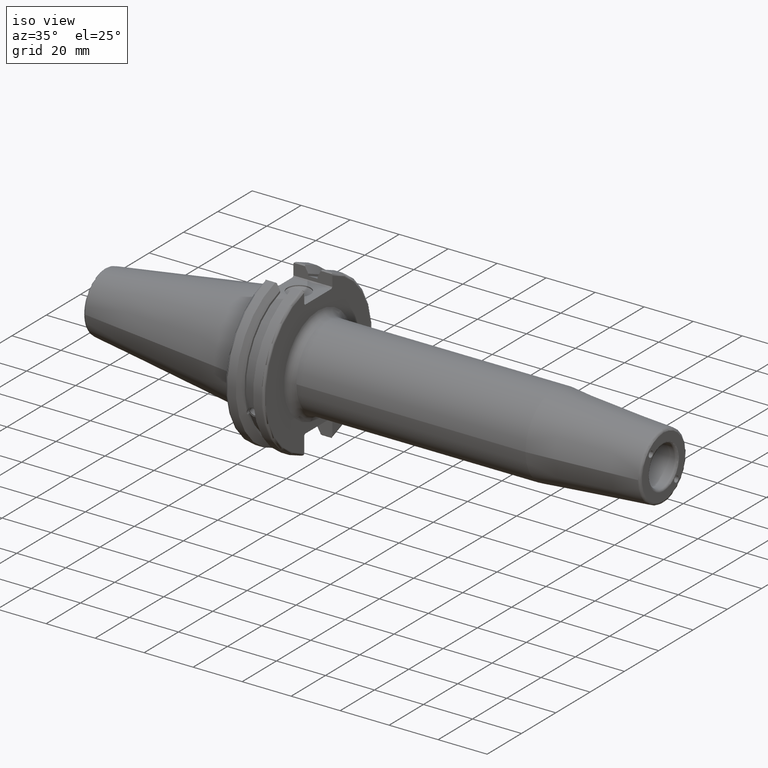
[diagram: clean part render]
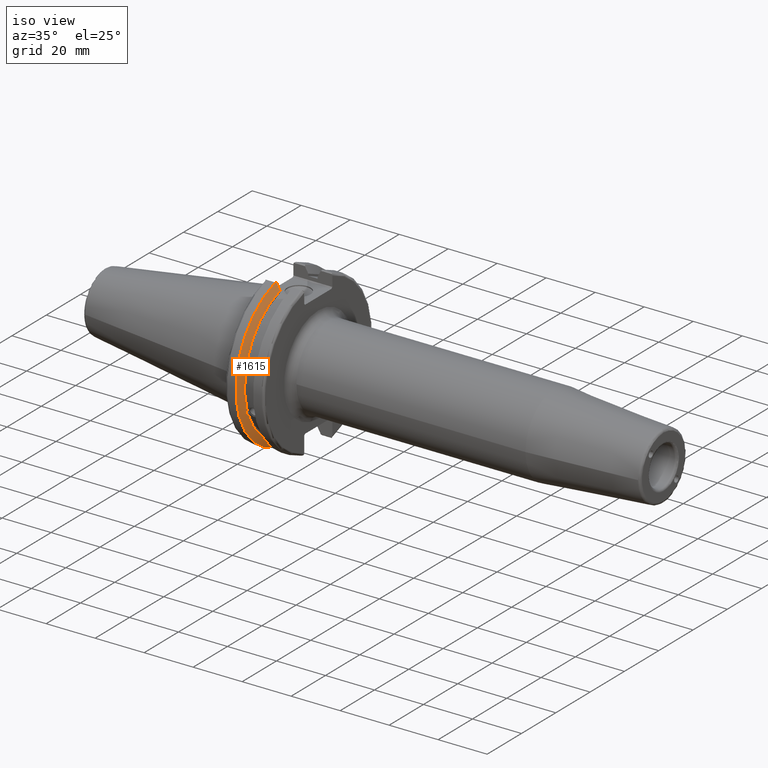
[diagram: same view with one face highlighted and labeled with its STEP entity id]
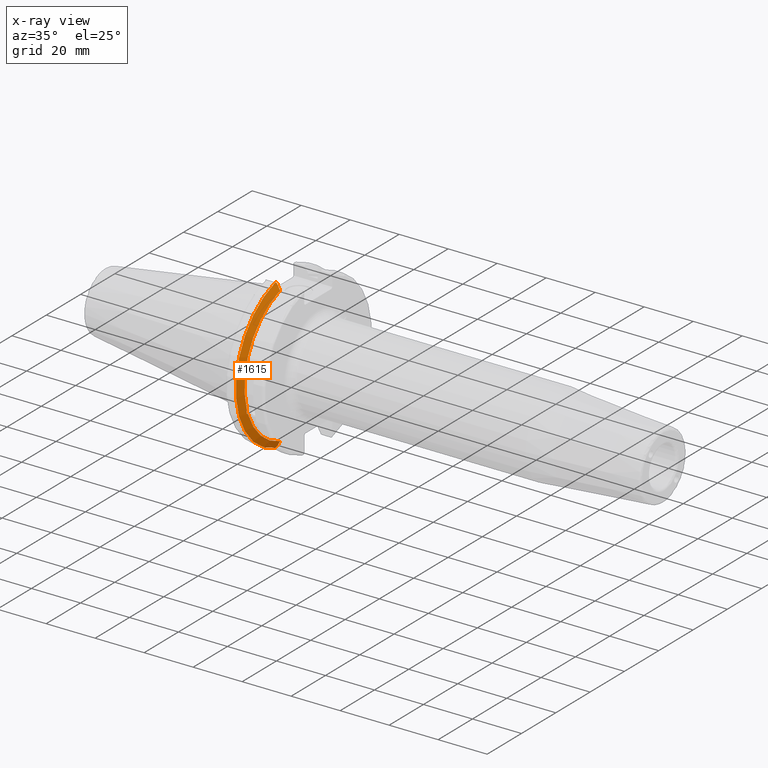
[diagram: x-ray of the same camera — body ghosted, the highlighted face saturated]
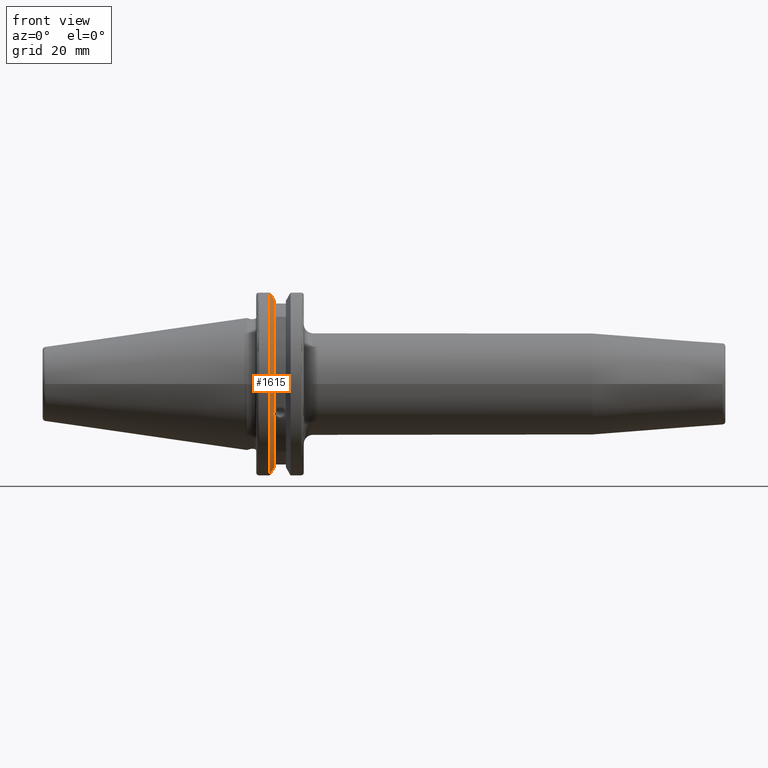
[diagram: same view with one face highlighted and labeled with its STEP entity id]
A machine part, iso view. The second image highlights one B-rep face of the part: STEP entity #1615.
The next image is the same camera in x-ray: the body ghosted, the highlighted face saturated — about 0% of this face is hidden behind the body in this view.
A second angle (front view) of the same face is appended — the face is thin or edge-on in the first view.
In plain terms, the highlighted conical surface has half-angle 60 deg.
Its self-contained STEP definition (entity closure, byte-faithful):
#25=(
BOUNDED_CURVE()
B_SPLINE_CURVE(2,(#2911,#2912,#2913),.UNSPECIFIED.,.F.,.F.)
B_SPLINE_CURVE_WITH_KNOTS((3,3),(0.,0.276549142796136),.UNSPECIFIED.)
CURVE()
GEOMETRIC_REPRESENTATION_ITEM()
RATIONAL_B_SPLINE_CURVE((1.,1.00095203903316,1.00031614444813))
REPRESENTATION_ITEM('')
);
#26=(
BOUNDED_CURVE()
B_SPLINE_CURVE(2,(#2923,#2924,#2925),.UNSPECIFIED.,.F.,.F.)
B_SPLINE_CURVE_WITH_KNOTS((3,3),(0.0550586467392022,0.33160778953585),
 .UNSPECIFIED.)
CURVE()
GEOMETRIC_REPRESENTATION_ITEM()
RATIONAL_B_SPLINE_CURVE((1.00031614445148,1.00095203904325,1.))
REPRESENTATION_ITEM('')
);
#27=(
BOUNDED_CURVE()
B_SPLINE_CURVE(2,(#2958,#2959,#2960),.UNSPECIFIED.,.F.,.F.)
B_SPLINE_CURVE_WITH_KNOTS((3,3),(0.,0.0639048713676282),.UNSPECIFIED.)
CURVE()
GEOMETRIC_REPRESENTATION_ITEM()
RATIONAL_B_SPLINE_CURVE((1.,1.00028444218284,1.00047644010574))
REPRESENTATION_ITEM('')
);
#28=(
BOUNDED_CURVE()
B_SPLINE_CURVE(2,(#2966,#2967,#2968),.UNSPECIFIED.,.F.,.F.)
B_SPLINE_CURVE_WITH_KNOTS((3,3),(0.329353533631205,0.393258405001025),
 .UNSPECIFIED.)
CURVE()
GEOMETRIC_REPRESENTATION_ITEM()
RATIONAL_B_SPLINE_CURVE((1.00047644010572,1.00028444218283,1.))
REPRESENTATION_ITEM('')
);
#37=B_SPLINE_CURVE_WITH_KNOTS('',3,(#2529,#2530,#2531,#2532,#2533,#2534,
#2535,#2536,#2537,#2538,#2539,#2540,#2541,#2542),.UNSPECIFIED.,.F.,.F.,
(4,2,2,2,2,2,4),(0.451995700189024,0.464547828547663,0.504528771685167,
0.544509714822672,0.584490657960178,0.624471601097683,0.63702372945632),
 .UNSPECIFIED.);
#263=FACE_OUTER_BOUND('',#371,.T.);
#371=EDGE_LOOP('',(#1501,#1502,#1503,#1504,#1505,#1506,#1507,#1508));
#600=CIRCLE('',#1717,28.9593772964944);
#622=CIRCLE('',#1773,31.75);
#640=CIRCLE('',#1824,28.9593772964944);
#693=VERTEX_POINT('',#2526);
#694=VERTEX_POINT('',#2528);
#711=VERTEX_POINT('',#2621);
#771=VERTEX_POINT('',#2908);
#772=VERTEX_POINT('',#2910);
#775=VERTEX_POINT('',#2922);
#779=VERTEX_POINT('',#2956);
#780=VERTEX_POINT('',#2962);
#868=EDGE_CURVE('',#694,#693,#37,.T.);
#892=EDGE_CURVE('',#694,#711,#600,.T.);
#975=EDGE_CURVE('',#772,#771,#25,.T.);
#981=EDGE_CURVE('',#775,#711,#26,.T.);
#989=EDGE_CURVE('',#779,#771,#27,.T.);
#991=EDGE_CURVE('',#779,#780,#622,.T.);
#992=EDGE_CURVE('',#775,#780,#28,.T.);
#1036=EDGE_CURVE('',#772,#693,#640,.T.);
#1501=ORIENTED_EDGE('',*,*,#868,.T.);
#1502=ORIENTED_EDGE('',*,*,#1036,.F.);
#1503=ORIENTED_EDGE('',*,*,#975,.T.);
#1504=ORIENTED_EDGE('',*,*,#989,.F.);
#1505=ORIENTED_EDGE('',*,*,#991,.T.);
#1506=ORIENTED_EDGE('',*,*,#992,.F.);
#1507=ORIENTED_EDGE('',*,*,#981,.T.);
#1508=ORIENTED_EDGE('',*,*,#892,.F.);
#1526=CONICAL_SURFACE('',#1823,30.3546886482472,1.0471975511966);
#1615=ADVANCED_FACE('',(#263),#1526,.T.);
#1717=AXIS2_PLACEMENT_3D('',#2622,#2016,#2017);
#1773=AXIS2_PLACEMENT_3D('',#2964,#2169,#2170);
#1823=AXIS2_PLACEMENT_3D('',#3084,#2290,#2291);
#1824=AXIS2_PLACEMENT_3D('',#3085,#2292,#2293);
#2016=DIRECTION('center_axis',(1.,0.,0.));
#2017=DIRECTION('ref_axis',(0.,0.,-1.));
#2169=DIRECTION('center_axis',(1.,0.,0.));
#2170=DIRECTION('ref_axis',(0.,0.,-1.));
#2290=DIRECTION('center_axis',(-1.,0.,0.));
#2291=DIRECTION('ref_axis',(0.,-1.,-1.22464679914735E-16));
#2292=DIRECTION('center_axis',(1.,0.,0.));
#2293=DIRECTION('ref_axis',(0.,0.,-1.));
#2526=CARTESIAN_POINT('',(9.2191,-27.4956274489925,-9.09043478536245));
#2528=CARTESIAN_POINT('',(9.2191,-26.9060914640648,-10.7101715919071));
#2529=CARTESIAN_POINT('Ctrl Pts',(9.2191,-26.9060914640648,-10.7101715919071));
#2530=CARTESIAN_POINT('Ctrl Pts',(9.20497959280038,-26.9406927482839,-10.6893765730703));
#2531=CARTESIAN_POINT('Ctrl Pts',(9.19150701821433,-26.9744191989197,-10.6676007180673));
#2532=CARTESIAN_POINT('Ctrl Pts',(9.13811855884095,-27.1113422433189,-10.5723885976054));
#2533=CARTESIAN_POINT('Ctrl Pts',(9.09998029158246,-27.2180531796526,-10.4801333026531));
#2534=CARTESIAN_POINT('Ctrl Pts',(9.04778935539424,-27.3968610665578,-10.2639559818059));
#2535=CARTESIAN_POINT('Ctrl Pts',(9.0341,-27.4684373304961,-10.139516340139));
#2536=CARTESIAN_POINT('Ctrl Pts',(9.0341,-27.559599249844,-9.8890510252165));
#2537=CARTESIAN_POINT('Ctrl Pts',(9.04778935539424,-27.5847569104122,-9.74771639360671));
#2538=CARTESIAN_POINT('Ctrl Pts',(9.09998029158246,-27.5867382255984,-9.46717946402648));
#2539=CARTESIAN_POINT('Ctrl Pts',(9.13811855884095,-27.5642934663232,-9.32791534028655));
#2540=CARTESIAN_POINT('Ctrl Pts',(9.19150701821434,-27.5206055003512,-9.16696618806877));
#2541=CARTESIAN_POINT('Ctrl Pts',(9.20497959280038,-27.5087667900418,-9.12860597076217));
#2542=CARTESIAN_POINT('Ctrl Pts',(9.2191,-27.4956274489925,-9.09043478536245));
#2621=CARTESIAN_POINT('',(9.2191,-8.19,-27.7771386827498));
#2622=CARTESIAN_POINT('Origin',(9.2191,0.,0.));
#2908=CARTESIAN_POINT('',(7.88668530351257,-8.19,30.1755016258903));
#2910=CARTESIAN_POINT('',(9.2191,-8.19,27.7771386827498));
#2911=CARTESIAN_POINT('Ctrl Pts',(9.2191,-8.19,27.7771386827498));
#2912=CARTESIAN_POINT('Ctrl Pts',(8.58046356152393,-8.19,28.9303689539705));
#2913=CARTESIAN_POINT('Ctrl Pts',(7.88668530351257,-8.19,30.1755016258903));
#2922=CARTESIAN_POINT('',(7.88668530351256,-8.19,-30.1755016258903));
#2923=CARTESIAN_POINT('Ctrl Pts',(7.88668530351256,-8.19,-30.1755016258903));
#2924=CARTESIAN_POINT('Ctrl Pts',(8.5804635615235,-8.19,-28.9303689539712));
#2925=CARTESIAN_POINT('Ctrl Pts',(9.2191,-8.19,-27.7771386827498));
#2956=CARTESIAN_POINT('',(7.60793323092436,-8.67204822802685,30.5427254764662));
#2958=CARTESIAN_POINT('Ctrl Pts',(7.60793323092436,-8.67204822802686,30.5427254764662));
#2959=CARTESIAN_POINT('Ctrl Pts',(7.74899148121626,-8.42917748262648,30.357706789263));
#2960=CARTESIAN_POINT('Ctrl Pts',(7.88668530351257,-8.19,30.1755016258903));
#2962=CARTESIAN_POINT('',(7.60793323092436,-8.67204822802685,-30.5427254764662));
#2964=CARTESIAN_POINT('Origin',(7.60793323092436,0.,0.));
#2966=CARTESIAN_POINT('Ctrl Pts',(7.88668530351256,-8.19,-30.1755016258903));
#2967=CARTESIAN_POINT('Ctrl Pts',(7.74899148121159,-8.42917748263467,-30.3577067892692));
#2968=CARTESIAN_POINT('Ctrl Pts',(7.60793323092435,-8.67204822802687,-30.5427254764662));
#3084=CARTESIAN_POINT('Origin',(8.41351661546218,0.,0.));
#3085=CARTESIAN_POINT('Origin',(9.2191,0.,0.));